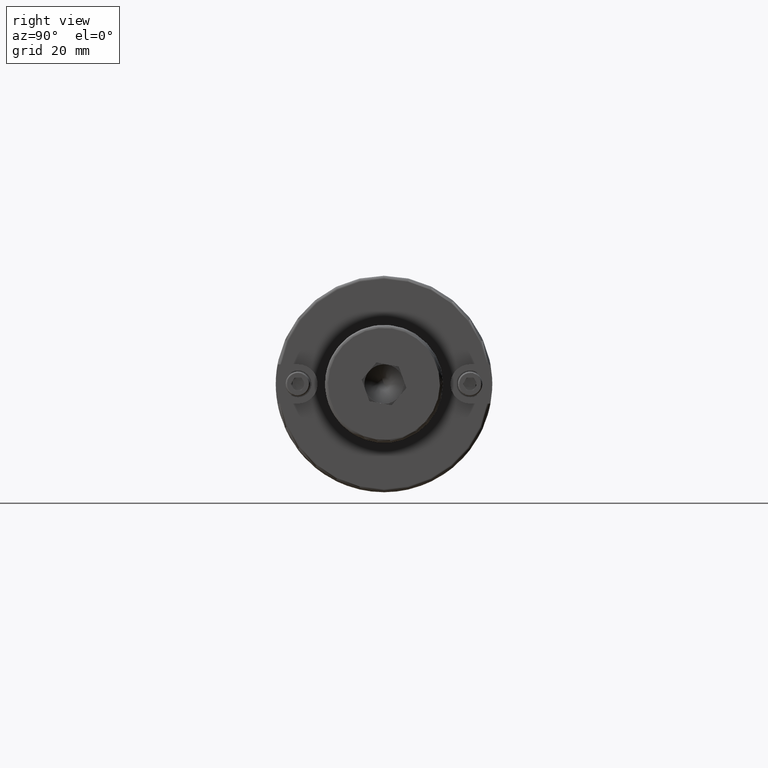
[diagram: clean part render]
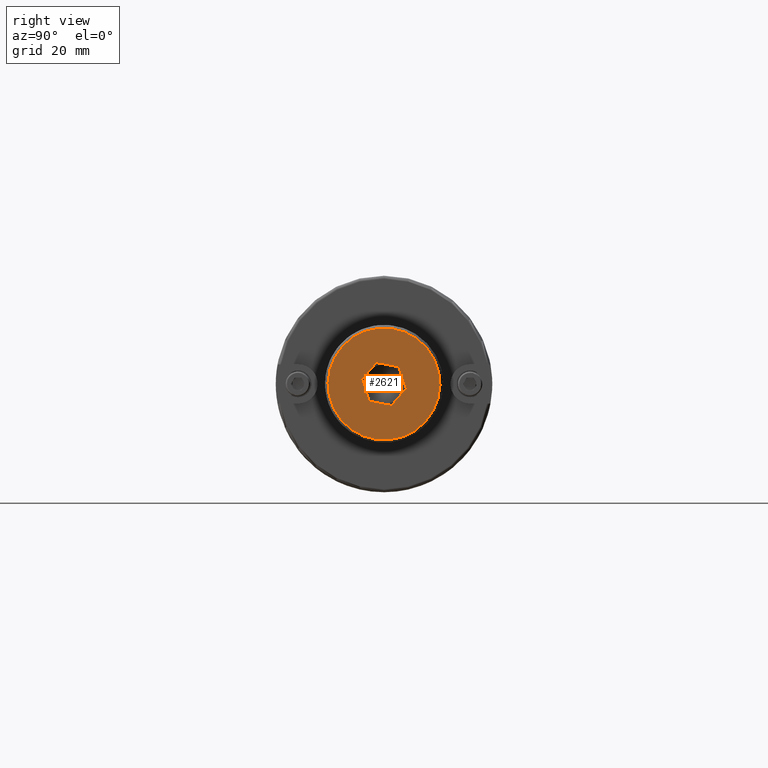
[diagram: same view with one face highlighted and labeled with its STEP entity id]
A machine part, right view. The second image highlights one B-rep face of the part: STEP entity #2621.
In plain terms, the highlighted planar face has unit normal (1, 0, 0).
Its self-contained STEP definition (entity closure, byte-faithful):
#198=FACE_BOUND('',#657,.T.);
#334=CIRCLE('',#3029,18.05);
#483=FACE_OUTER_BOUND('',#656,.T.);
#656=EDGE_LOOP('',(#2397));
#657=EDGE_LOOP('',(#2398,#2399,#2400,#2401,#2402,#2403));
#806=LINE('',#4987,#967);
#809=LINE('',#4992,#970);
#811=LINE('',#4996,#972);
#813=LINE('',#5000,#974);
#815=LINE('',#5004,#976);
#817=LINE('',#5007,#978);
#967=VECTOR('',#3759,10.);
#970=VECTOR('',#3764,10.);
#972=VECTOR('',#3768,10.);
#974=VECTOR('',#3772,10.);
#976=VECTOR('',#3776,10.);
#978=VECTOR('',#3780,10.);
#1257=VERTEX_POINT('',#4985);
#1258=VERTEX_POINT('',#4986);
#1259=VERTEX_POINT('',#4991);
#1260=VERTEX_POINT('',#4995);
#1261=VERTEX_POINT('',#4999);
#1262=VERTEX_POINT('',#5003);
#1269=VERTEX_POINT('',#5028);
#1625=EDGE_CURVE('',#1257,#1258,#806,.T.);
#1628=EDGE_CURVE('',#1259,#1257,#809,.T.);
#1630=EDGE_CURVE('',#1260,#1259,#811,.T.);
#1632=EDGE_CURVE('',#1261,#1260,#813,.T.);
#1634=EDGE_CURVE('',#1262,#1261,#815,.T.);
#1636=EDGE_CURVE('',#1258,#1262,#817,.T.);
#1647=EDGE_CURVE('',#1269,#1269,#334,.T.);
#2397=ORIENTED_EDGE('',*,*,#1647,.F.);
#2398=ORIENTED_EDGE('',*,*,#1625,.T.);
#2399=ORIENTED_EDGE('',*,*,#1636,.T.);
#2400=ORIENTED_EDGE('',*,*,#1634,.T.);
#2401=ORIENTED_EDGE('',*,*,#1632,.T.);
#2402=ORIENTED_EDGE('',*,*,#1630,.T.);
#2403=ORIENTED_EDGE('',*,*,#1628,.T.);
#2472=PLANE('',#3030);
#2621=ADVANCED_FACE('',(#483,#198),#2472,.T.);
#3029=AXIS2_PLACEMENT_3D('',#5030,#3810,#3811);
#3030=AXIS2_PLACEMENT_3D('',#5031,#3812,#3813);
#3759=DIRECTION('',(0.,-0.866025403784439,-0.5));
#3764=DIRECTION('',(0.,-0.866025403784439,0.5));
#3768=DIRECTION('',(0.,-1.51414384754611E-16,1.));
#3772=DIRECTION('',(0.,0.866025403784439,0.5));
#3776=DIRECTION('',(0.,0.866025403784438,-0.5));
#3780=DIRECTION('',(0.,-6.05657539018446E-16,-1.));
#3810=DIRECTION('center_axis',(1.,0.,0.));
#3811=DIRECTION('ref_axis',(0.,-1.,1.83697019872103E-16));
#3812=DIRECTION('center_axis',(-1.,0.,0.));
#3813=DIRECTION('ref_axis',(0.,0.,1.));
#4985=CARTESIAN_POINT('',(0.,-1.23259516440783E-31,7.33234841870824));
#4986=CARTESIAN_POINT('',(0.,-6.34999999999999,3.66617420935412));
#4987=CARTESIAN_POINT('',(0.,5.55625,10.5402508518931));
#4991=CARTESIAN_POINT('',(0.,6.34999999999999,3.66617420935412));
#4992=CARTESIAN_POINT('',(0.,11.90625,0.45827177616926));
#4995=CARTESIAN_POINT('',(0.,6.34999999999999,-3.66617420935412));
#4996=CARTESIAN_POINT('',(0.,6.34999999999999,-1.83308710467706));
#4999=CARTESIAN_POINT('',(0.,-3.33066907387547E-15,-7.33234841870824));
#5000=CARTESIAN_POINT('',(0.,8.73125,-2.29135888084633));
#5003=CARTESIAN_POINT('',(0.,-6.35,-3.66617420935412));
#5004=CARTESIAN_POINT('',(0.,2.38125,-8.70716374721604));
#5007=CARTESIAN_POINT('',(0.,-6.35,1.83308710467707));
#5028=CARTESIAN_POINT('',(0.,-2.21048747246097E-15,18.05));
#5030=CARTESIAN_POINT('Origin',(0.,0.,0.));
#5031=CARTESIAN_POINT('Origin',(0.,19.05,0.));